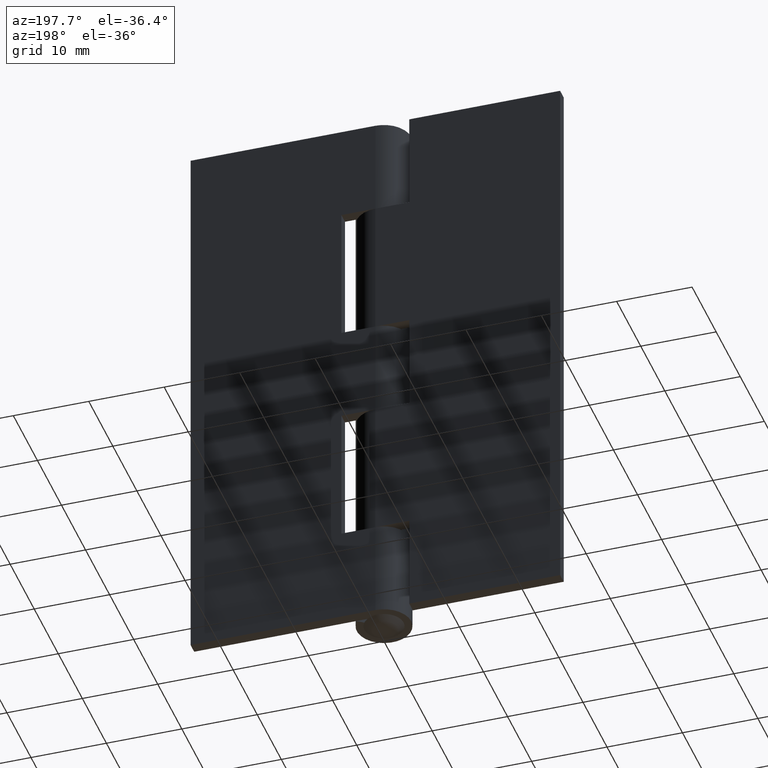
[diagram: clean part render]
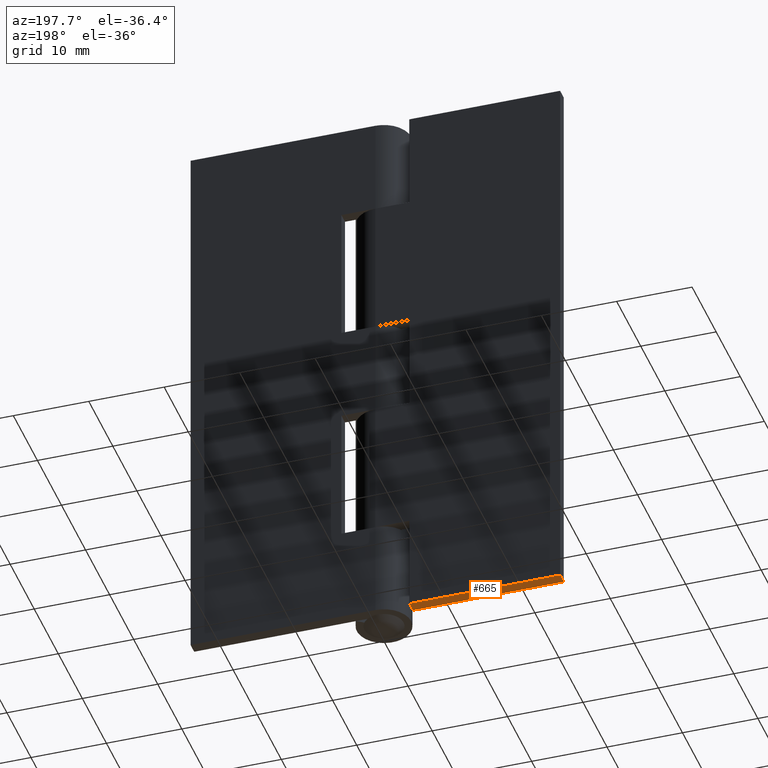
[diagram: same view with one face highlighted and labeled with its STEP entity id]
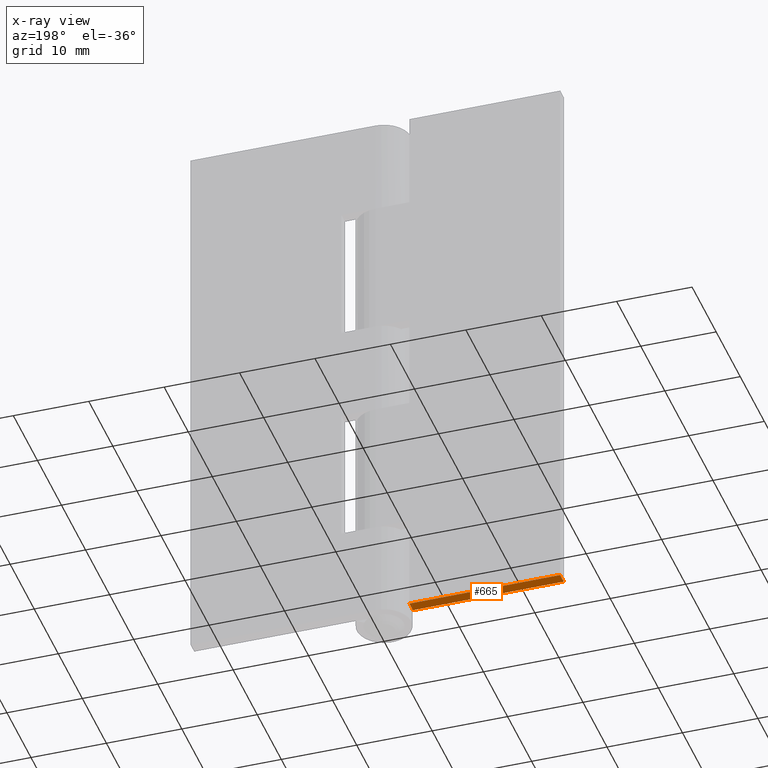
[diagram: x-ray of the same camera — body ghosted, the highlighted face saturated]
A machine part, auxiliary view. The second image highlights one B-rep face of the part: STEP entity #665.
The next image is the same camera in x-ray: the body ghosted, the highlighted face saturated — about 0% of this face is hidden behind the body in this view.
In plain terms, the highlighted face is a freeform B-spline surface patch.
Its self-contained STEP definition (entity closure, byte-faithful):
#282=CARTESIAN_POINT('',(-24.500000000000000,2.099998000000030,0.0));
#283=VERTEX_POINT('',#282);
#289=CARTESIAN_POINT('',(-4.500000000000000,2.099998000000030,0.0));
#290=VERTEX_POINT('',#289);
#291=CARTESIAN_POINT('',(-24.500000000000000,2.099998000000030,0.0));
#292=CARTESIAN_POINT('',(-4.500000000000000,2.099998000000030,0.0));
#293=QUASI_UNIFORM_CURVE('',1,(#291,#292),.UNSPECIFIED.,.F.,.U.);
#294=EDGE_CURVE('',#283,#290,#293,.T.);
#479=CARTESIAN_POINT('',(-4.500000000000000,3.599998000000105,0.0));
#480=VERTEX_POINT('',#479);
#481=CARTESIAN_POINT('',(-4.500000000000000,2.099998000000030,0.0));
#482=CARTESIAN_POINT('',(-4.500000000000000,3.599998000000105,0.0));
#483=QUASI_UNIFORM_CURVE('',1,(#481,#482),.UNSPECIFIED.,.F.,.U.);
#484=EDGE_CURVE('',#290,#480,#483,.T.);
#627=CARTESIAN_POINT('',(-24.500000000000000,3.599998000000000,0.0));
#628=VERTEX_POINT('',#627);
#629=CARTESIAN_POINT('',(-24.500000000000000,3.599998000000000,0.0));
#630=CARTESIAN_POINT('',(-24.500000000000000,2.099998000000030,0.0));
#631=QUASI_UNIFORM_CURVE('',1,(#629,#630),.UNSPECIFIED.,.F.,.U.);
#632=EDGE_CURVE('',#628,#283,#631,.T.);
#650=CARTESIAN_POINT('',(-25.498999961236120,2.025073002907317,0.0));
#651=CARTESIAN_POINT('',(-3.500999502322078,2.025073002907317,0.0));
#652=CARTESIAN_POINT('',(-25.498999961236120,3.674923037325953,0.0));
#653=CARTESIAN_POINT('',(-3.500999502322078,3.674923037325953,0.0));
#654=B_SPLINE_SURFACE_WITH_KNOTS('',1,1,((#650,#652),(#651,#653)),.UNSPECIFIED.,.F.,.F.,.U.,(2,2),(2,2),(0.0,21.998000458914039),(0.041708334948495,0.958291687403247),.UNSPECIFIED.);
#655=CARTESIAN_POINT('',(-4.500000000000000,3.599998000000105,0.0));
#656=CARTESIAN_POINT('',(-24.500000000000000,3.599998000000000,0.0));
#657=QUASI_UNIFORM_CURVE('',1,(#655,#656),.UNSPECIFIED.,.F.,.U.);
#658=EDGE_CURVE('',#480,#628,#657,.T.);
#659=ORIENTED_EDGE('',*,*,#658,.F.);
#660=ORIENTED_EDGE('',*,*,#484,.F.);
#661=ORIENTED_EDGE('',*,*,#294,.F.);
#662=ORIENTED_EDGE('',*,*,#632,.F.);
#663=EDGE_LOOP('',(#659,#660,#661,#662));
#664=FACE_OUTER_BOUND('',#663,.T.);
#665=ADVANCED_FACE('',(#664),#654,.F.);